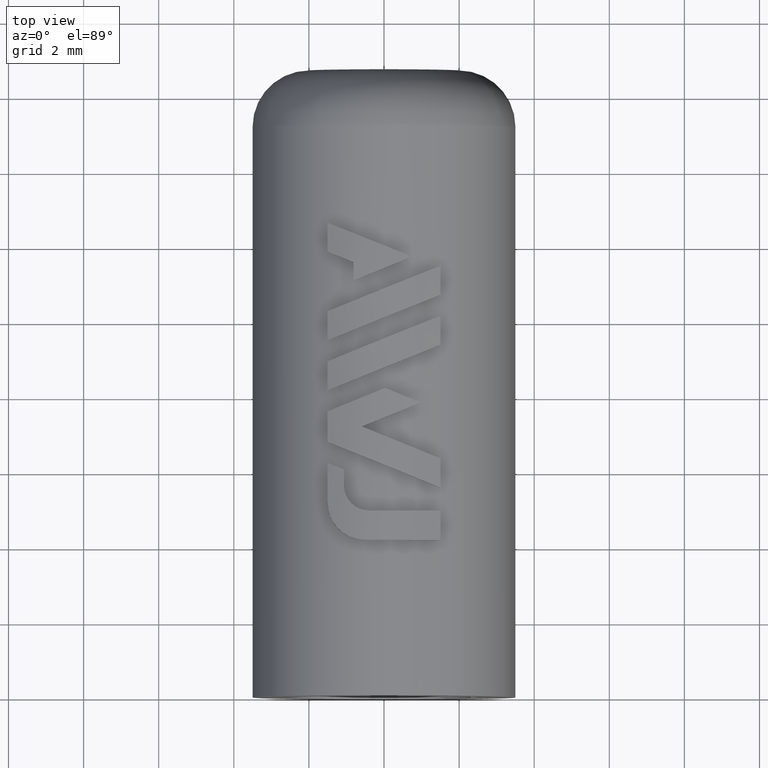
[diagram: clean part render]
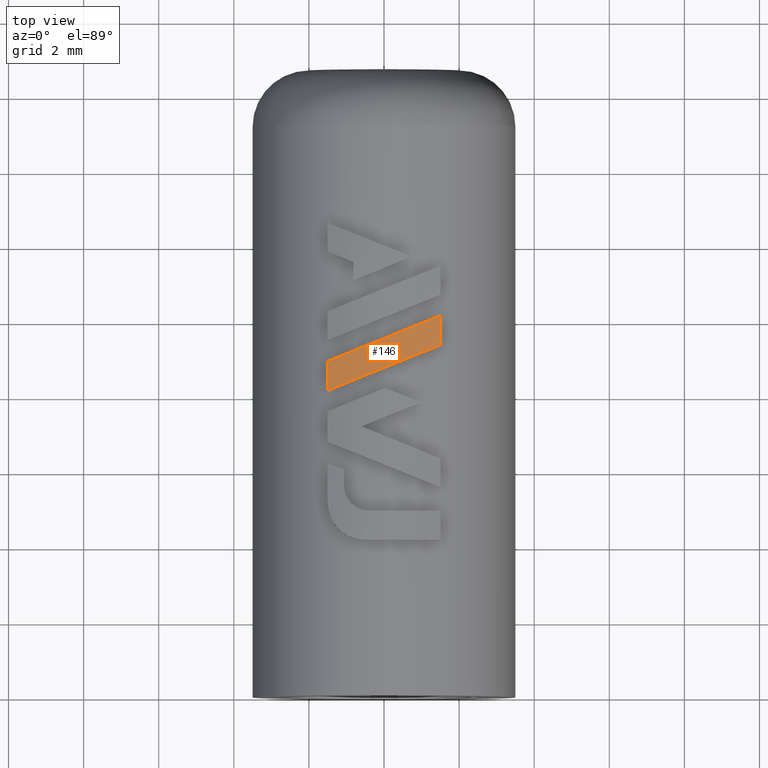
[diagram: same view with one face highlighted and labeled with its STEP entity id]
A machine part, top view. The second image highlights one B-rep face of the part: STEP entity #146.
In plain terms, the highlighted cylindrical surface (partial cylindrical patch) has radius 3.7 mm, axis along (-0, 1, 0).
Its self-contained STEP definition (entity closure, byte-faithful):
#146=ADVANCED_FACE('',(#298),#299,.T.);
#298=FACE_OUTER_BOUND('',#2033,.T.);
#299=CYLINDRICAL_SURFACE('',#2034,3.7);
#2033=EDGE_LOOP('',(#2602,#2603,#2604,#2605));
#2034=AXIS2_PLACEMENT_3D('',#2606,#2607,#2608);
#2602=ORIENTED_EDGE('',*,*,#2940,.F.);
#2603=ORIENTED_EDGE('',*,*,#2939,.F.);
#2604=ORIENTED_EDGE('',*,*,#2941,.F.);
#2605=ORIENTED_EDGE('',*,*,#2936,.F.);
#2606=CARTESIAN_POINT('',(0.0,20.7151496897518,0.0));
#2607=DIRECTION('',(-0.0,1.0,0.0));
#2608=DIRECTION('',(1.0,0.0,-6.12323399573677E-17));
#2936=EDGE_CURVE('',#3276,#3274,#3278,.T.);
#2939=EDGE_CURVE('',#3281,#3279,#3283,.F.);
#2940=EDGE_CURVE('',#3279,#3276,#3284,.T.);
#2941=EDGE_CURVE('',#3274,#3281,#3285,.T.);
#3274=VERTEX_POINT('',#4518);
#3276=VERTEX_POINT('',#4521);
#3278=LINE('',#4524,#4525);
#3279=VERTEX_POINT('',#4526);
#3281=VERTEX_POINT('',#4529);
#3283=LINE('',#4532,#4533);
#3284=ELLIPSE('',#4534,3.99063836004873,3.7);
#3285=ELLIPSE('',#4535,3.99063866831246,3.7);
#4518=CARTESIAN_POINT('',(1.49798357216801,9.332788342968,3.38320044004413));
#4521=CARTESIAN_POINT('',(1.49798357216801,10.107533193302,3.38320044004413));
#4524=CARTESIAN_POINT('',(1.49798357216801,20.7151496897518,3.38320044004413));
#4525=VECTOR('',#4961,1000.0);
#4526=CARTESIAN_POINT('',(-1.50017849999999,8.89606771272999,3.3822277374739));
#4529=CARTESIAN_POINT('',(-1.50017849999999,8.12132219565,3.38222773747389));
#4532=CARTESIAN_POINT('',(-1.50017849999999,20.7151496897518,3.38222773747389));
#4533=VECTOR('',#4964,1000.0);
#4534=AXIS2_PLACEMENT_3D('',#4965,#4966,#4967);
#4535=AXIS2_PLACEMENT_3D('',#4968,#4969,#4970);
#4961=DIRECTION('',(0.0,-1.0,0.0));
#4964=DIRECTION('',(0.0,-1.0,0.0));
#4965=CARTESIAN_POINT('',(0.0,9.50224390457678,0.0));
#4966=DIRECTION('',(-0.374640987210496,0.927169957829709,-6.16297582203916E-33));
#4967=DIRECTION('',(-0.927169957829709,-0.374640987210496,4.93038065763132E-32));
#4968=CARTESIAN_POINT('',(0.0,8.72749872111385,0.0));
#4969=DIRECTION('',(0.374641164459304,-0.927169886208874,4.00593428432545E-32));
#4970=DIRECTION('',(-0.927169886208874,-0.374641164459304,-2.46519032881566E-32));